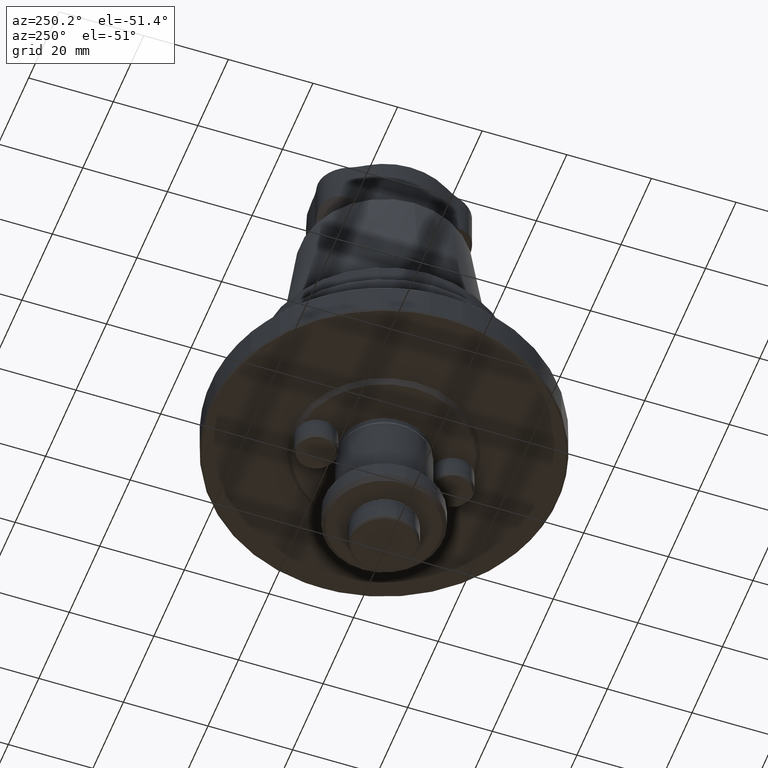
[diagram: clean part render]
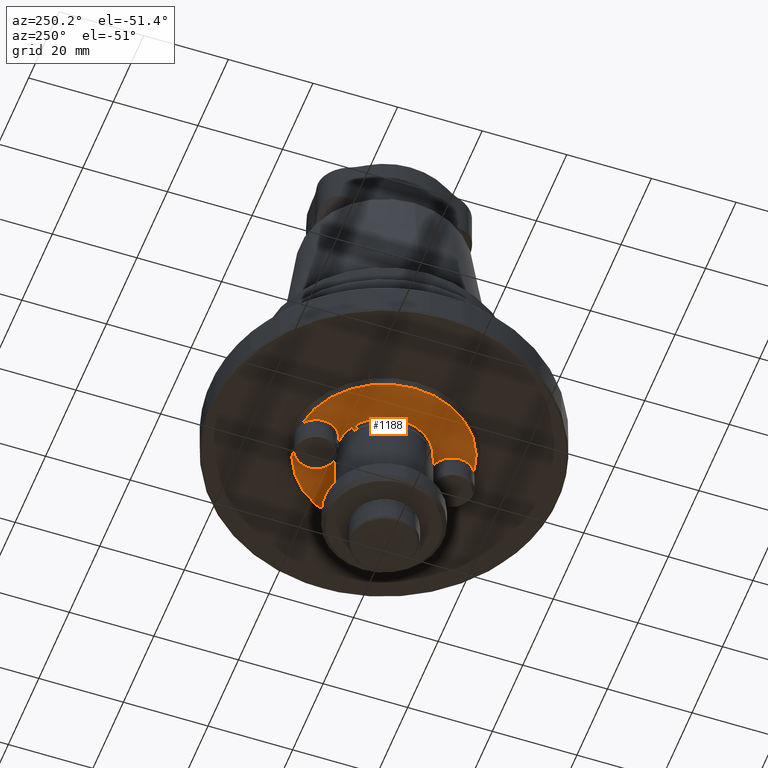
[diagram: same view with one face highlighted and labeled with its STEP entity id]
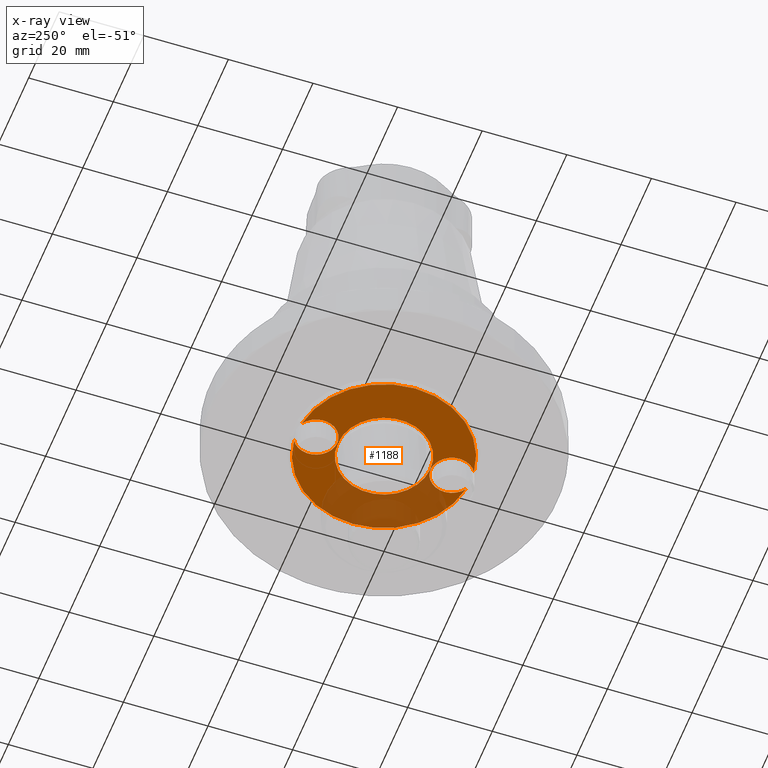
[diagram: x-ray of the same camera — body ghosted, the highlighted face saturated]
A machine part, auxiliary view. The second image highlights one B-rep face of the part: STEP entity #1188.
The next image is the same camera in x-ray: the body ghosted, the highlighted face saturated — about 34% of this face is hidden behind the body in this view.
In plain terms, the highlighted planar face has unit normal (0, 0, -1).
Its self-contained STEP definition (entity closure, byte-faithful):
#165=PLANE('',#1294);
#231=ORIENTED_EDGE('',*,*,#557,.T.);
#232=ORIENTED_EDGE('',*,*,#558,.F.);
#233=ORIENTED_EDGE('',*,*,#559,.T.);
#234=ORIENTED_EDGE('',*,*,#560,.F.);
#235=ORIENTED_EDGE('',*,*,#561,.T.);
#557=EDGE_CURVE('',#721,#721,#841,.T.);
#558=EDGE_CURVE('',#722,#723,#842,.T.);
#559=EDGE_CURVE('',#722,#724,#843,.T.);
#560=EDGE_CURVE('',#725,#724,#844,.T.);
#561=EDGE_CURVE('',#725,#723,#845,.T.);
#721=VERTEX_POINT('',#1843);
#722=VERTEX_POINT('',#1846);
#723=VERTEX_POINT('',#1847);
#724=VERTEX_POINT('',#1849);
#725=VERTEX_POINT('',#1851);
#841=CIRCLE('',#1293,10.9418572032223);
#842=CIRCLE('',#1295,5.);
#843=CIRCLE('',#1296,20.5);
#844=CIRCLE('',#1297,5.);
#845=CIRCLE('',#1298,20.5);
#922=EDGE_LOOP('',(#231));
#923=EDGE_LOOP('',(#232,#233,#234,#235));
#1052=FACE_BOUND('',#922,.T.);
#1053=FACE_BOUND('',#923,.T.);
#1188=ADVANCED_FACE('',(#1052,#1053),#165,.T.);
#1293=AXIS2_PLACEMENT_3D('',#1842,#1469,#1470);
#1294=AXIS2_PLACEMENT_3D('',#1844,#1471,#1472);
#1295=AXIS2_PLACEMENT_3D('',#1845,#1473,#1474);
#1296=AXIS2_PLACEMENT_3D('',#1848,#1475,#1476);
#1297=AXIS2_PLACEMENT_3D('',#1850,#1477,#1478);
#1298=AXIS2_PLACEMENT_3D('',#1852,#1479,#1480);
#1469=DIRECTION('',(0.,0.,1.));
#1470=DIRECTION('',(0.,-1.,0.));
#1471=DIRECTION('',(0.,0.,-1.));
#1472=DIRECTION('',(0.,1.,0.));
#1473=DIRECTION('',(0.,0.,-1.));
#1474=DIRECTION('',(9.86076131526265E-32,-1.,0.));
#1475=DIRECTION('',(0.,0.,-1.));
#1476=DIRECTION('',(0.,1.,0.));
#1477=DIRECTION('',(0.,0.,-1.));
#1478=DIRECTION('',(9.86076131526265E-32,-1.,0.));
#1479=DIRECTION('',(0.,0.,-1.));
#1480=DIRECTION('',(0.,1.,0.));
#1842=CARTESIAN_POINT('',(0.,0.,-10.));
#1843=CARTESIAN_POINT('',(0.,-10.9418572032223,-10.));
#1844=CARTESIAN_POINT('',(0.,11.9,-10.));
#1845=CARTESIAN_POINT('',(0.,-16.05,-10.));
#1846=CARTESIAN_POINT('',(-2.57144602259714,-20.3380841121495,-10.));
#1847=CARTESIAN_POINT('',(2.57144602259714,-20.3380841121495,-10.));
#1848=CARTESIAN_POINT('',(0.,0.,-10.));
#1849=CARTESIAN_POINT('',(-2.57144602259716,20.3380841121495,-10.));
#1850=CARTESIAN_POINT('',(0.,16.05,-10.));
#1851=CARTESIAN_POINT('',(2.57144602259716,20.3380841121495,-10.));
#1852=CARTESIAN_POINT('',(0.,0.,-10.));